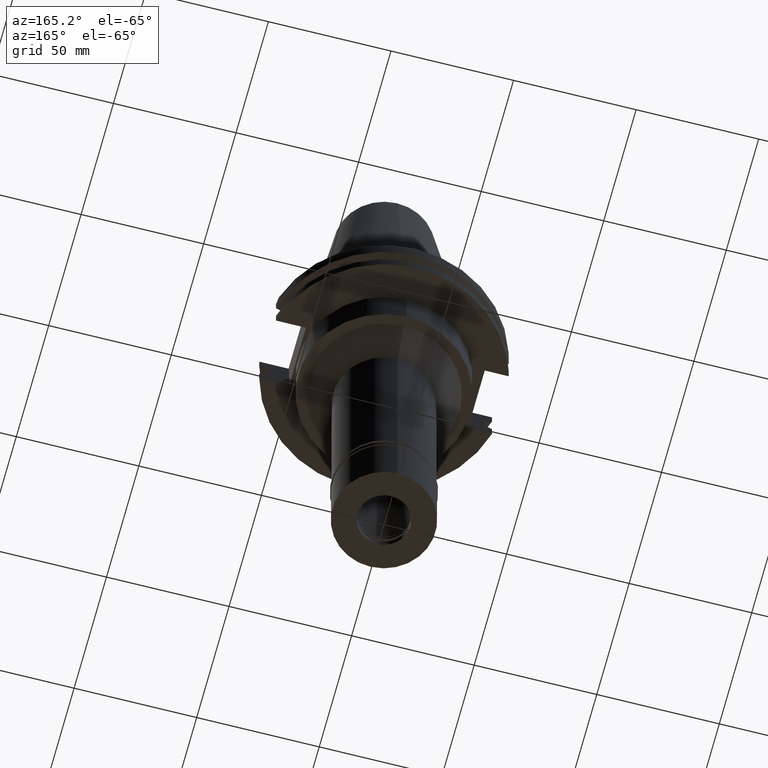
[diagram: clean part render]
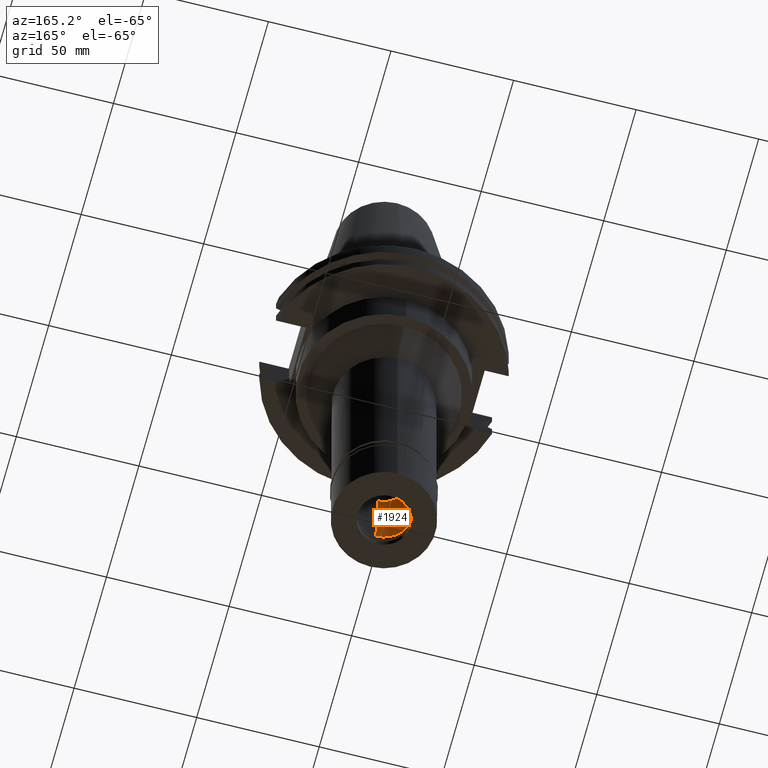
[diagram: same view with one face highlighted and labeled with its STEP entity id]
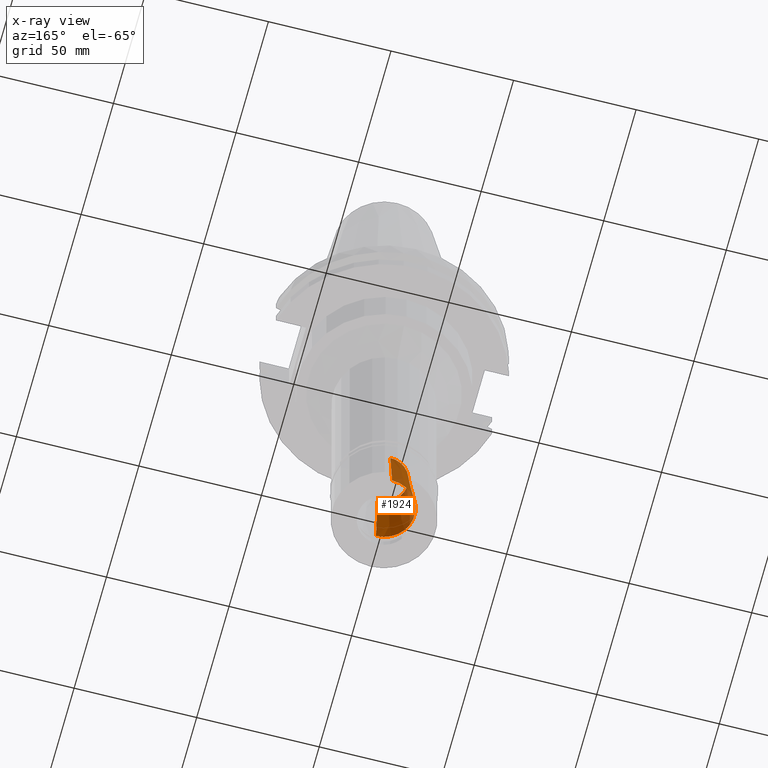
[diagram: x-ray of the same camera — body ghosted, the highlighted face saturated]
A machine part, auxiliary view. The second image highlights one B-rep face of the part: STEP entity #1924.
The next image is the same camera in x-ray: the body ghosted, the highlighted face saturated — about 4% of this face is hidden behind the body in this view.
In plain terms, the highlighted conical surface has half-angle 6 deg.
Its self-contained STEP definition (entity closure, byte-faithful):
#8 = CARTESIAN_POINT ( 'NONE',  ( 0.0000000000000000000, -12.50000000000000000, -141.4000000000000057 ) ) ;
#39 = DIRECTION ( 'NONE',  ( 0.0000000000000000000, 0.0000000000000000000, -1.000000000000000000 ) ) ;
#143 = ORIENTED_EDGE ( 'NONE', *, *, #370, .T. ) ;
#194 = DIRECTION ( 'NONE',  ( 0.0000000000000000000, 0.0000000000000000000, -1.000000000000000000 ) ) ;
#197 = CARTESIAN_POINT ( 'NONE',  ( 0.0000000000000000000, 9.662185647822997936, -114.4000000000000057 ) ) ;
#241 = DIRECTION ( 'NONE',  ( 0.0000000000000000000, 0.1045284632676965891, 0.9945218953682687379 ) ) ;
#297 = DIRECTION ( 'NONE',  ( 0.0000000000000000000, 0.0000000000000000000, 1.000000000000000000 ) ) ;
#339 = CARTESIAN_POINT ( 'NONE',  ( 0.0000000000000000000, 12.50000000000000000, -141.4000000000000057 ) ) ;
#370 = EDGE_CURVE ( 'NONE', #810, #1520, #2069, .T. ) ;
#378 = CIRCLE ( 'NONE', #2526, 9.662185647822997936 ) ;
#394 = EDGE_CURVE ( 'NONE', #1520, #2918, #378, .T. ) ;
#449 = FACE_OUTER_BOUND ( 'NONE', #1879, .T. ) ;
#653 = CARTESIAN_POINT ( 'NONE',  ( 0.0000000000000000000, -12.50000000000000000, -141.4000000000000057 ) ) ;
#786 = CARTESIAN_POINT ( 'NONE',  ( 0.0000000000000000000, 12.50000000000000000, -141.4000000000000057 ) ) ;
#794 = CARTESIAN_POINT ( 'NONE',  ( 0.0000000000000000000, 0.0000000000000000000, -114.4000000000000057 ) ) ;
#806 = DIRECTION ( 'NONE',  ( 0.0000000000000000000, -1.000000000000000000, 0.0000000000000000000 ) ) ;
#810 = VERTEX_POINT ( 'NONE', #339 ) ;
#1055 = CIRCLE ( 'NONE', #1504, 12.50000000000000000 ) ;
#1424 = ORIENTED_EDGE ( 'NONE', *, *, #2735, .T. ) ;
#1504 = AXIS2_PLACEMENT_3D ( 'NONE', #2353, #39, #806 ) ;
#1520 = VERTEX_POINT ( 'NONE', #197 ) ;
#1523 = ORIENTED_EDGE ( 'NONE', *, *, #394, .T. ) ;
#1710 = AXIS2_PLACEMENT_3D ( 'NONE', #1743, #194, #2248 ) ;
#1743 = CARTESIAN_POINT ( 'NONE',  ( 0.0000000000000000000, 0.0000000000000000000, -127.9000000000000199 ) ) ;
#1879 = EDGE_LOOP ( 'NONE', ( #1523, #2219, #1424, #143 ) ) ;
#1902 = CARTESIAN_POINT ( 'NONE',  ( 0.0000000000000000000, -9.662185647822997936, -114.4000000000000057 ) ) ;
#1924 = ADVANCED_FACE ( 'NONE', ( #449 ), #3110, .F. ) ;
#2069 = LINE ( 'NONE', #786, #2250 ) ;
#2219 = ORIENTED_EDGE ( 'NONE', *, *, #2774, .F. ) ;
#2248 = DIRECTION ( 'NONE',  ( 0.0000000000000000000, -1.000000000000000000, 0.0000000000000000000 ) ) ;
#2250 = VECTOR ( 'NONE', #2946, 1000.000000000000227 ) ;
#2262 = VERTEX_POINT ( 'NONE', #653 ) ;
#2304 = DIRECTION ( 'NONE',  ( 0.0000000000000000000, 1.000000000000000000, 0.0000000000000000000 ) ) ;
#2353 = CARTESIAN_POINT ( 'NONE',  ( 0.0000000000000000000, 0.0000000000000000000, -141.4000000000000057 ) ) ;
#2526 = AXIS2_PLACEMENT_3D ( 'NONE', #794, #297, #2304 ) ;
#2735 = EDGE_CURVE ( 'NONE', #2262, #810, #1055, .T. ) ;
#2774 = EDGE_CURVE ( 'NONE', #2262, #2918, #3299, .T. ) ;
#2918 = VERTEX_POINT ( 'NONE', #1902 ) ;
#2946 = DIRECTION ( 'NONE',  ( 0.0000000000000000000, -0.1045284632676965891, 0.9945218953682687379 ) ) ;
#3110 = CONICAL_SURFACE ( 'NONE', #1710, 11.08109282390999972, 0.1047197551196402399 ) ;
#3170 = VECTOR ( 'NONE', #241, 1000.000000000000227 ) ;
#3299 = LINE ( 'NONE', #8, #3170 ) ;